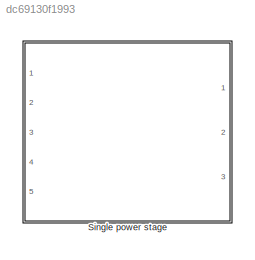
MODEL slx_dc69130f1993
KIND library
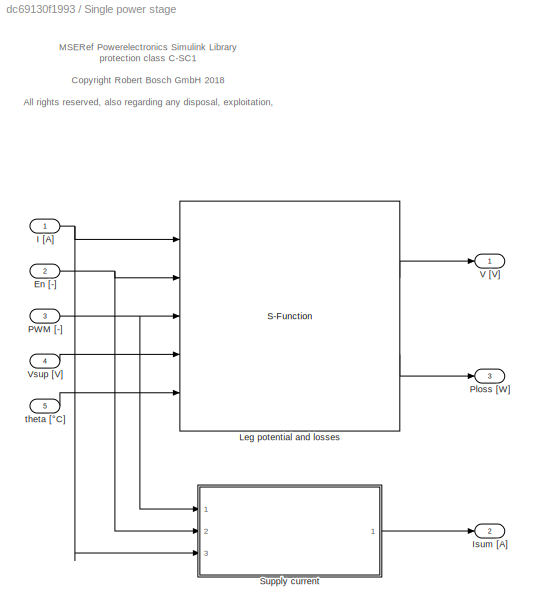
BLOCK [SubSystem] Single power stage
  AttributesFormatString = <%<Tag>>
  Ports = [5, 3]
  RequestExecContextInheritance = off
  Tag = PEPS101MSEREF
BLOCK [Inport] Single power stage/En [-]
  IconDisplay = Port number
  Port = 2
BLOCK [Inport] Single power stage/I [A]
  IconDisplay = Port number
BLOCK [Outport] Single power stage/Isum [A]
  IconDisplay = Port number
  Port = 2
BLOCK [S-Function] Single power stage/Leg potential and losses
  EnableBusSupport = off
  FunctionName = PEPS101MSEREF_potential_sfn
  Parameters = RT20, RD20, VT20, VD20, IGBT, Ieps, alphaRT, alphaRD, alphaVT, alphaVD
  Ports = [5, 2]
BLOCK [Inport] Single power stage/PWM [-]
  IconDisplay = Port number
  Port = 3
BLOCK [Outport] Single power stage/Ploss [W]
  IconDisplay = Port number
  Port = 3
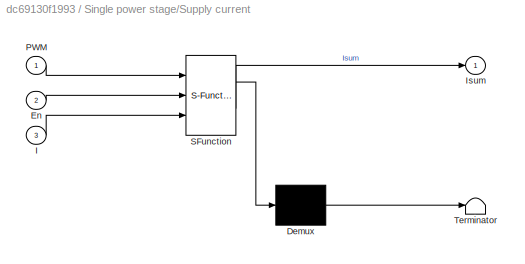
BLOCK [SubSystem] Single power stage/Supply current
  ErrorFcn = Stateflow.Translate.translate
  PermitHierarchicalResolution = ExplicitOnly
  Ports = [3, 1]
  RequestExecContextInheritance = off
  SFBlockType = MATLAB Function
  TreatAsAtomicUnit = on
BLOCK [Demux] Single power stage/Supply current/ Demux 
  Outputs = 1
  Ports = [1, 1]
BLOCK [S-Function] Single power stage/Supply current/ SFunction 
  EnableBusSupport = off
  FunctionName = sf_sfun
  PortCounts = [3 2]
  Ports = [3, 2]
  Tag = Stateflow S-Function PEPS101MSEREF 10
BLOCK [Terminator] Single power stage/Supply current/ Terminator 
BLOCK [Inport] Single power stage/Supply current/En
  IconDisplay = Port number
  Port = 2
BLOCK [Inport] Single power stage/Supply current/I
  IconDisplay = Port number
  Port = 3
BLOCK [Outport] Single power stage/Supply current/Isum
  IconDisplay = Port number
BLOCK [Inport] Single power stage/Supply current/PWM
  IconDisplay = Port number
BLOCK [Outport] Single power stage/V [V]
  IconDisplay = Port number
BLOCK [Inport] Single power stage/Vsup [V]
  IconDisplay = Port number
  Port = 4
BLOCK [Inport] Single power stage/theta [°C]
  IconDisplay = Port number
  Port = 5
ANNOTATION Single power stage: MSERef Powerelectronics Simulink Library protection class C-SC1 <copyright redacted>
NET Single power stage/En [-]:1 -> Single power stage/Leg potential and losses:2, Single power stage/Supply current:2
NET Single power stage/I [A]:1 -> Single power stage/Leg potential and losses:1, Single power stage/Supply current:3
LINE Single power stage/Leg potential and losses:1 -> Single power stage/V [V]:1
LINE Single power stage/Leg potential and losses:2 -> Single power stage/Ploss [W]:1
NET Single power stage/PWM [-]:1 -> Single power stage/Leg potential and losses:3, Single power stage/Supply current:1
LINE Single power stage/Supply current:1 -> Single power stage/Isum [A]:1
LINE Single power stage/Vsup [V]:1 -> Single power stage/Leg potential and losses:4
LINE Single power stage/theta [°C]:1 -> Single power stage/Leg potential and losses:5
note: NET lines group one-source signal fan-out (src -> all destinations, sorted); 1:1 wires keep LINE
CHART Single power stage/Supply current states=1 transitions=1
  STATE_LABEL 'eML_blk_kernel()'
  STATE_LABEL 'SCRIPT:\nfunction Isum = PEPS101MSEREF_supply_current(PWM,En,I)\n% This function is used to compute the supply current.\n%\n%  MSERef Powerelectronics Simulink Library \n%  protection class C-SC1\n%\n%  <copyright redacted>\n%\n%  All rights reserved, also regarding any disposal, exploitation,\n%  reproduction, editing, distribution, as well as in the event of\n%  applications for industrial prop...<+155ch>'
